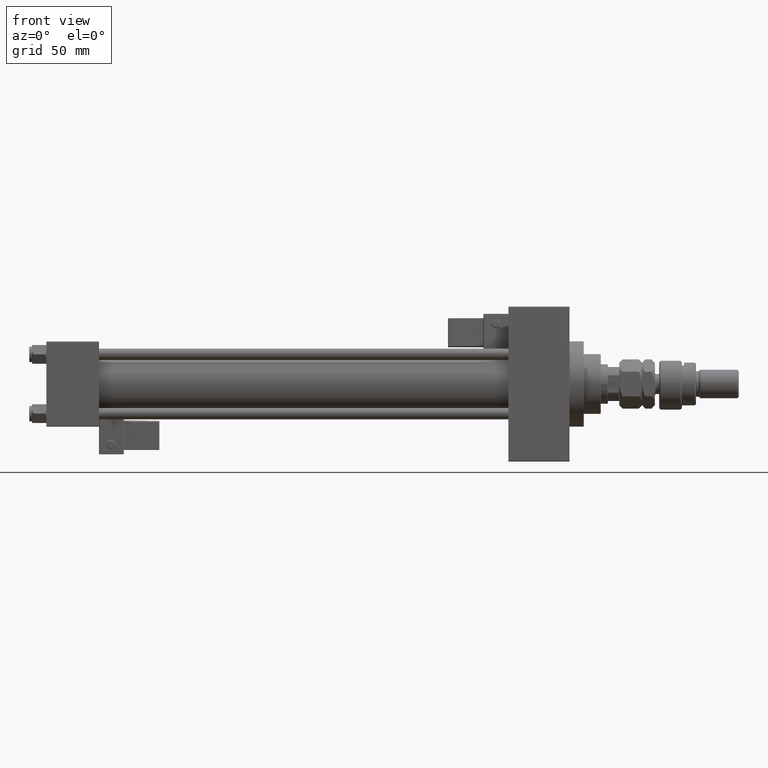
[diagram: clean part render]
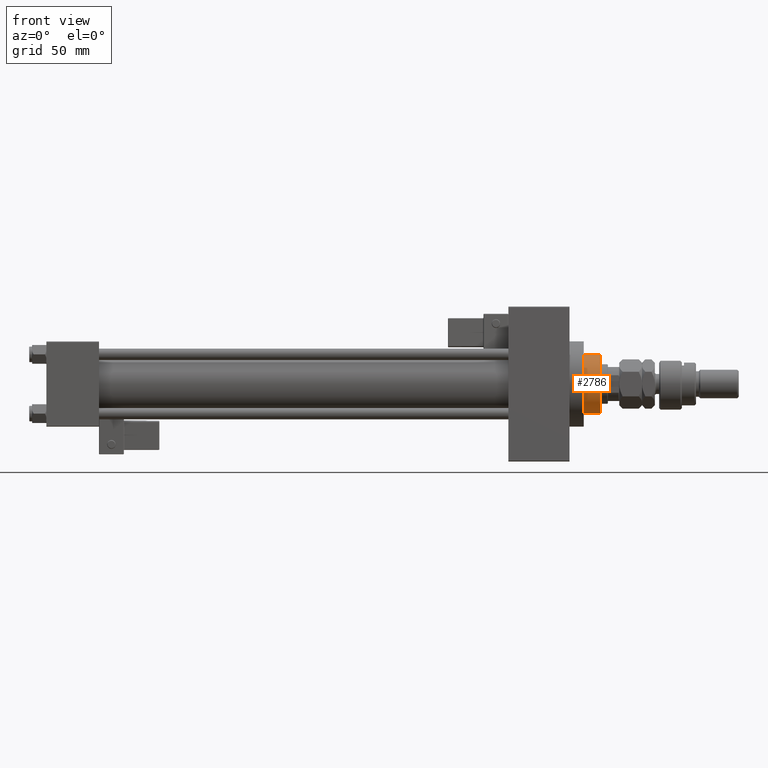
[diagram: same view with one face highlighted and labeled with its STEP entity id]
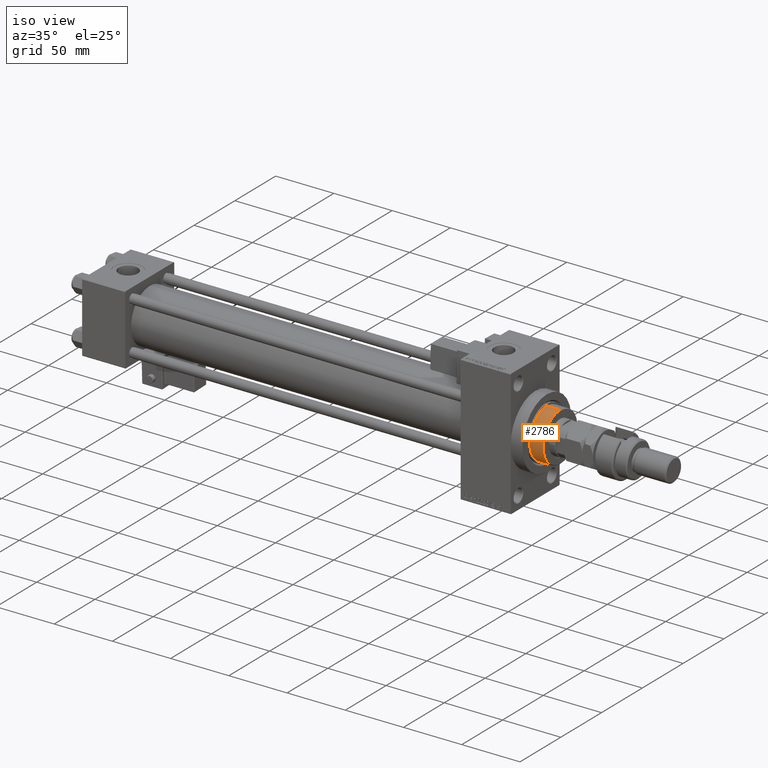
[diagram: same view with one face highlighted and labeled with its STEP entity id]
A machine part, front view. The second image highlights one B-rep face of the part: STEP entity #2786.
A second angle (iso view) of the same face is appended — the face is thin or edge-on in the first view.
In plain terms, the highlighted cylindrical surface (edge-blend (fillet) strip) has radius 21 mm, axis along (-1, 0, 0).
Its self-contained STEP definition (entity closure, byte-faithful):
#512 = DIRECTION ( 'NONE',  ( -0.000000000000000000, -0.000000000000000000, -1.000000000000000000 ) ) ;
#2650 = ORIENTED_EDGE ( 'NONE', *, *, #48699, .T. ) ;
#2786 = ADVANCED_FACE ( 'NONE', ( #24310 ), #24831, .T. ) ;
#3496 = CARTESIAN_POINT ( 'NONE',  ( 0.000000000000000000, 0.000000000000000000, 54.75999999999999091 ) ) ;
#3832 = AXIS2_PLACEMENT_3D ( 'NONE', #16103, #15592, #23044 ) ;
#4237 = AXIS2_PLACEMENT_3D ( 'NONE', #3496, #8244, #36183 ) ;
#4296 = CARTESIAN_POINT ( 'NONE',  ( -20.96385542168674831, 1.231570484631382412, 43.25999999999999801 ) ) ;
#5347 = ORIENTED_EDGE ( 'NONE', *, *, #33313, .T. ) ;
#7413 = CARTESIAN_POINT ( 'NONE',  ( 20.96385542168674831, 1.231570484631385076, 43.25999999999999801 ) ) ;
#7692 = EDGE_CURVE ( 'NONE', #45273, #41831, #13214, .T. ) ;
#8244 = DIRECTION ( 'NONE',  ( 0.000000000000000000, 0.000000000000000000, -1.000000000000000000 ) ) ;
#10006 = CARTESIAN_POINT ( 'NONE',  ( -21.00000000000000000, 0.000000000000000000, 55.26000000000000512 ) ) ;
#10565 = CARTESIAN_POINT ( 'NONE',  ( 0.000000000000000000, 0.000000000000000000, 43.25999999999999801 ) ) ;
#11022 = EDGE_CURVE ( 'NONE', #34921, #33904, #12277, .T. ) ;
#12277 = CIRCLE ( 'NONE', #3832, 21.00000000000000000 ) ;
#13214 = LINE ( 'NONE', #10006, #47861 ) ;
#14031 = DIRECTION ( 'NONE',  ( 1.000000000000000000, 0.000000000000000000, 0.000000000000000000 ) ) ;
#15411 = ORIENTED_EDGE ( 'NONE', *, *, #15562, .T. ) ;
#15562 = EDGE_CURVE ( 'NONE', #33904, #41831, #44625, .T. ) ;
#15592 = DIRECTION ( 'NONE',  ( 0.000000000000000000, 0.000000000000000000, 1.000000000000000000 ) ) ;
#16103 = CARTESIAN_POINT ( 'NONE',  ( 0.000000000000000000, 0.000000000000000000, 43.25999999999999801 ) ) ;
#16982 = CIRCLE ( 'NONE', #4237, 21.00000000000000000 ) ;
#18322 = CARTESIAN_POINT ( 'NONE',  ( -21.00000000000000000, 0.000000000000000000, 54.75999999999999091 ) ) ;
#18582 = ORIENTED_EDGE ( 'NONE', *, *, #26652, .T. ) ;
#18802 = CARTESIAN_POINT ( 'NONE',  ( 21.00000000000000000, 2.571758278209441661E-15, 54.75999999999999091 ) ) ;
#20668 = EDGE_LOOP ( 'NONE', ( #2650, #18582, #5347, #26991, #15411, #30844 ) ) ;
#23044 = DIRECTION ( 'NONE',  ( 1.000000000000000000, 0.000000000000000000, 0.000000000000000000 ) ) ;
#23504 = DIRECTION ( 'NONE',  ( 0.000000000000000000, 0.000000000000000000, 1.000000000000000000 ) ) ;
#24057 = CARTESIAN_POINT ( 'NONE',  ( 0.000000000000000000, 0.000000000000000000, 55.26000000000000512 ) ) ;
#24310 = FACE_OUTER_BOUND ( 'NONE', #20668, .T. ) ;
#24437 = LINE ( 'NONE', #48639, #47971 ) ;
#24725 = DIRECTION ( 'NONE',  ( 1.000000000000000000, 0.000000000000000000, 0.000000000000000000 ) ) ;
#24831 = CYLINDRICAL_SURFACE ( 'NONE', #44216, 21.00000000000000000 ) ;
#26113 = CIRCLE ( 'NONE', #51605, 21.00000000000000000 ) ;
#26652 = EDGE_CURVE ( 'NONE', #52366, #30360, #24437, .T. ) ;
#26991 = ORIENTED_EDGE ( 'NONE', *, *, #11022, .T. ) ;
#30360 = VERTEX_POINT ( 'NONE', #47352 ) ;
#30844 = ORIENTED_EDGE ( 'NONE', *, *, #7692, .F. ) ;
#32806 = DIRECTION ( 'NONE',  ( -1.000000000000000000, 0.000000000000000000, 0.000000000000000000 ) ) ;
#33313 = EDGE_CURVE ( 'NONE', #30360, #34921, #26113, .T. ) ;
#33427 = DIRECTION ( 'NONE',  ( -0.000000000000000000, -0.000000000000000000, -1.000000000000000000 ) ) ;
#33904 = VERTEX_POINT ( 'NONE', #4296 ) ;
#34921 = VERTEX_POINT ( 'NONE', #7413 ) ;
#35589 = CARTESIAN_POINT ( 'NONE',  ( -21.00000000000000000, 0.000000000000000000, 43.25999999999999801 ) ) ;
#36183 = DIRECTION ( 'NONE',  ( 1.000000000000000000, 0.000000000000000000, 0.000000000000000000 ) ) ;
#41831 = VERTEX_POINT ( 'NONE', #35589 ) ;
#44216 = AXIS2_PLACEMENT_3D ( 'NONE', #24057, #45040, #32806 ) ;
#44625 = CIRCLE ( 'NONE', #52295, 21.00000000000000000 ) ;
#45040 = DIRECTION ( 'NONE',  ( -0.000000000000000000, -0.000000000000000000, -1.000000000000000000 ) ) ;
#45273 = VERTEX_POINT ( 'NONE', #18322 ) ;
#47352 = CARTESIAN_POINT ( 'NONE',  ( 21.00000000000000000, 2.571758278209441661E-15, 43.25999999999999801 ) ) ;
#47861 = VECTOR ( 'NONE', #33427, 1000.000000000000000 ) ;
#47968 = CARTESIAN_POINT ( 'NONE',  ( 0.000000000000000000, 0.000000000000000000, 43.25999999999999801 ) ) ;
#47971 = VECTOR ( 'NONE', #512, 1000.000000000000000 ) ;
#48639 = CARTESIAN_POINT ( 'NONE',  ( 21.00000000000000000, 2.571758278209441661E-15, 55.26000000000000512 ) ) ;
#48699 = EDGE_CURVE ( 'NONE', #45273, #52366, #16982, .T. ) ;
#50461 = DIRECTION ( 'NONE',  ( 0.000000000000000000, 0.000000000000000000, 1.000000000000000000 ) ) ;
#51605 = AXIS2_PLACEMENT_3D ( 'NONE', #10565, #50461, #14031 ) ;
#52295 = AXIS2_PLACEMENT_3D ( 'NONE', #47968, #23504, #24725 ) ;
#52366 = VERTEX_POINT ( 'NONE', #18802 ) ;